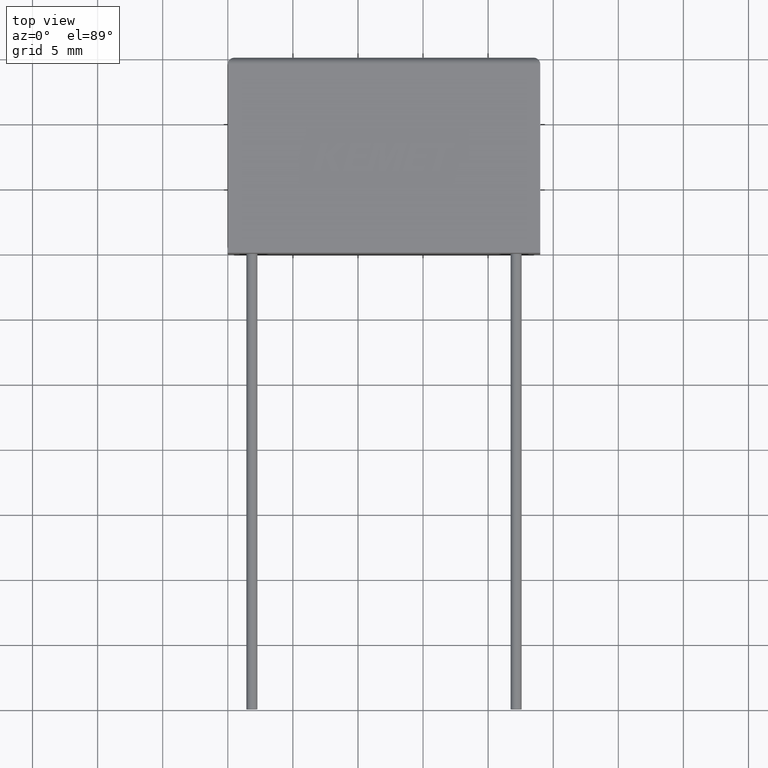
[diagram: clean part render]
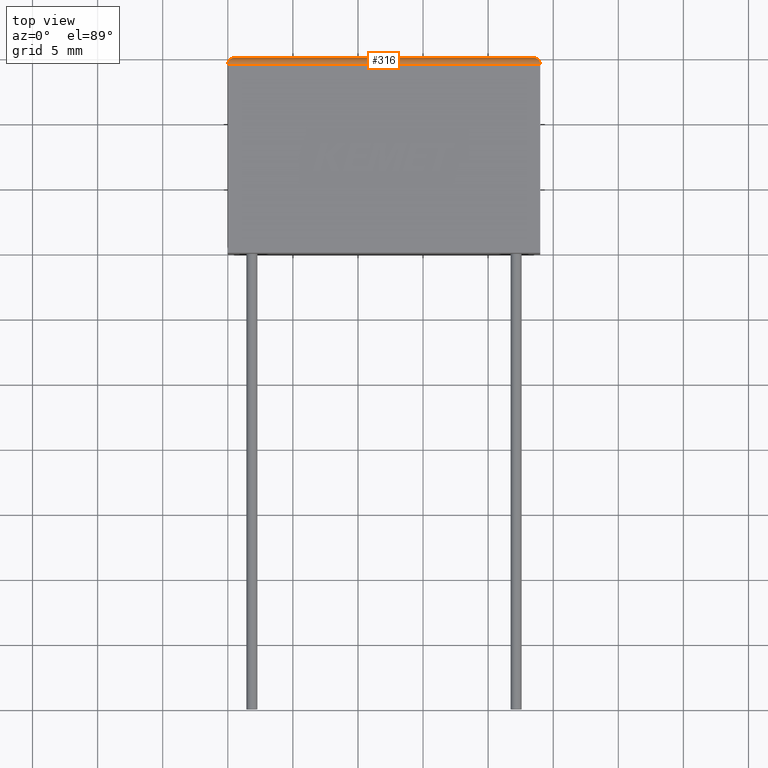
[diagram: same view with one face highlighted and labeled with its STEP entity id]
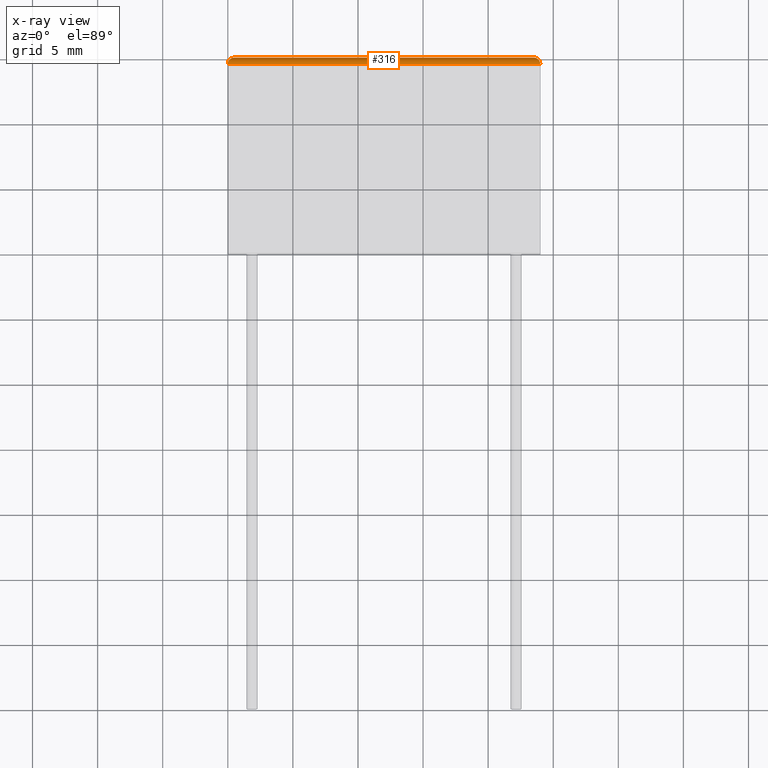
[diagram: x-ray of the same camera — body ghosted, the highlighted face saturated]
A machine part, top view. The second image highlights one B-rep face of the part: STEP entity #316.
The next image is the same camera in x-ray: the body ghosted, the highlighted face saturated — about 0% of this face is hidden behind the body in this view.
In plain terms, the highlighted cylindrical surface (edge-blend (fillet) strip) has radius 0.5 mm, axis along (-1, 0, 0).
Its self-contained STEP definition (entity closure, byte-faithful):
#51 = VERTEX_POINT ( 'NONE', #140 ) ;
#140 = CARTESIAN_POINT ( 'NONE',  ( 0.5000000000000000000, 15.00000000000000000, 8.499999999999998200 ) ) ;
#229 = DIRECTION ( 'NONE',  ( -1.000000000000000000, 0.0000000000000000000, 0.0000000000000000000 ) ) ;
#283 = FACE_OUTER_BOUND ( 'NONE', #1099, .T. ) ;
#316 = ADVANCED_FACE ( 'NONE', ( #283 ), #1087, .T. ) ;
#355 = CARTESIAN_POINT ( 'NONE',  ( 24.00000000000000000, 14.49999999999999800, 9.000000000000000000 ) ) ;
#420 = VERTEX_POINT ( 'NONE', #1950 ) ;
#620 = DIRECTION ( 'NONE',  ( 0.0000000000000000000, 0.0000000000000000000, 1.000000000000000000 ) ) ;
#734 =( BOUNDED_CURVE ( )  B_SPLINE_CURVE ( 3, ( #2201, #2416, #1246, #2209 ),
 .UNSPECIFIED., .F., .F. ) 
 B_SPLINE_CURVE_WITH_KNOTS ( ( 4, 4 ),
 ( 1.570796326794896800, 3.141592653589793100 ),
 .UNSPECIFIED. ) 
 CURVE ( )  GEOMETRIC_REPRESENTATION_ITEM ( )  RATIONAL_B_SPLINE_CURVE ( ( 1.000000000000000000, 0.8047378541243650500, 0.8047378541243650500, 1.000000000000000000 ) ) 
 REPRESENTATION_ITEM ( '' )  );
#775 = CARTESIAN_POINT ( 'NONE',  ( 0.0000000000000000000, 14.49999999999999800, 8.499999999999998200 ) ) ;
#807 = CARTESIAN_POINT ( 'NONE',  ( 0.0000000000000000000, 14.49999999999999800, 9.000000000000000000 ) ) ;
#903 = CARTESIAN_POINT ( 'NONE',  ( 24.00000000000000000, 14.79289321881345000, 9.000000000000000000 ) ) ;
#943 = ORIENTED_EDGE ( 'NONE', *, *, #2316, .F. ) ;
#1087 = CYLINDRICAL_SURFACE ( 'NONE', #1518, 0.5000000000000004400 ) ;
#1099 = EDGE_LOOP ( 'NONE', ( #1793, #943, #2398, #1903 ) ) ;
#1246 = CARTESIAN_POINT ( 'NONE',  ( 1.442892915397364600E-016, 14.79289321881345000, 9.000000000000000000 ) ) ;
#1294 = EDGE_CURVE ( 'NONE', #51, #420, #734, .T. ) ;
#1324 = LINE ( 'NONE', #807, #1387 ) ;
#1387 = VECTOR ( 'NONE', #1757, 1000.000000000000000 ) ;
#1502 = CARTESIAN_POINT ( 'NONE',  ( 23.50000000000000000, 15.00000000000000000, 8.499999999999998200 ) ) ;
#1518 = AXIS2_PLACEMENT_3D ( 'NONE', #775, #229, #620 ) ;
#1726 =( BOUNDED_CURVE ( )  B_SPLINE_CURVE ( 3, ( #1502, #2246, #903, #355 ),
 .UNSPECIFIED., .F., .T. ) 
 B_SPLINE_CURVE_WITH_KNOTS ( ( 4, 4 ),
 ( 1.570796326794896600, 3.141592653589793100 ),
 .UNSPECIFIED. ) 
 CURVE ( )  GEOMETRIC_REPRESENTATION_ITEM ( )  RATIONAL_B_SPLINE_CURVE ( ( 1.000000000000000000, 0.8047378541243649400, 0.8047378541243649400, 1.000000000000000000 ) ) 
 REPRESENTATION_ITEM ( '' )  );
#1757 = DIRECTION ( 'NONE',  ( -1.000000000000000000, 0.0000000000000000000, 0.0000000000000000000 ) ) ;
#1769 = VERTEX_POINT ( 'NONE', #1841 ) ;
#1793 = ORIENTED_EDGE ( 'NONE', *, *, #1294, .T. ) ;
#1841 = CARTESIAN_POINT ( 'NONE',  ( 23.50000000000000000, 15.00000000000000000, 8.499999999999998200 ) ) ;
#1900 = DIRECTION ( 'NONE',  ( 1.000000000000000000, -0.0000000000000000000, -0.0000000000000000000 ) ) ;
#1903 = ORIENTED_EDGE ( 'NONE', *, *, #2183, .F. ) ;
#1920 = CARTESIAN_POINT ( 'NONE',  ( 0.0000000000000000000, 15.00000000000000000, 8.499999999999998200 ) ) ;
#1950 = CARTESIAN_POINT ( 'NONE',  ( 0.0000000000000000000, 14.49999999999999800, 9.000000000000000000 ) ) ;
#1982 = LINE ( 'NONE', #1920, #2439 ) ;
#2056 = EDGE_CURVE ( 'NONE', #1769, #2218, #1726, .T. ) ;
#2115 = CARTESIAN_POINT ( 'NONE',  ( 24.00000000000000000, 14.49999999999999800, 9.000000000000000000 ) ) ;
#2183 = EDGE_CURVE ( 'NONE', #51, #1769, #1982, .T. ) ;
#2201 = CARTESIAN_POINT ( 'NONE',  ( 0.5000000000000000000, 15.00000000000000000, 8.499999999999998200 ) ) ;
#2209 = CARTESIAN_POINT ( 'NONE',  ( 0.0000000000000000000, 14.49999999999999800, 9.000000000000000000 ) ) ;
#2218 = VERTEX_POINT ( 'NONE', #2115 ) ;
#2246 = CARTESIAN_POINT ( 'NONE',  ( 23.79289321881345000, 15.00000000000000000, 8.792893218813452100 ) ) ;
#2316 = EDGE_CURVE ( 'NONE', #2218, #420, #1324, .T. ) ;
#2398 = ORIENTED_EDGE ( 'NONE', *, *, #2056, .F. ) ;
#2416 = CARTESIAN_POINT ( 'NONE',  ( 0.2071067811865475200, 14.99999999999999800, 8.792893218813450300 ) ) ;
#2439 = VECTOR ( 'NONE', #1900, 1000.000000000000000 ) ;